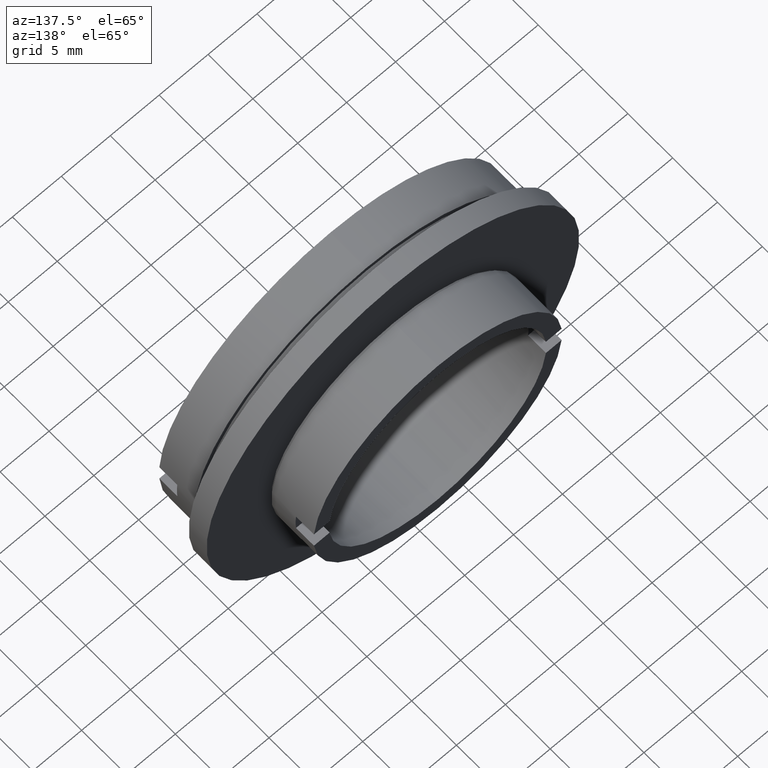
[diagram: clean part render]
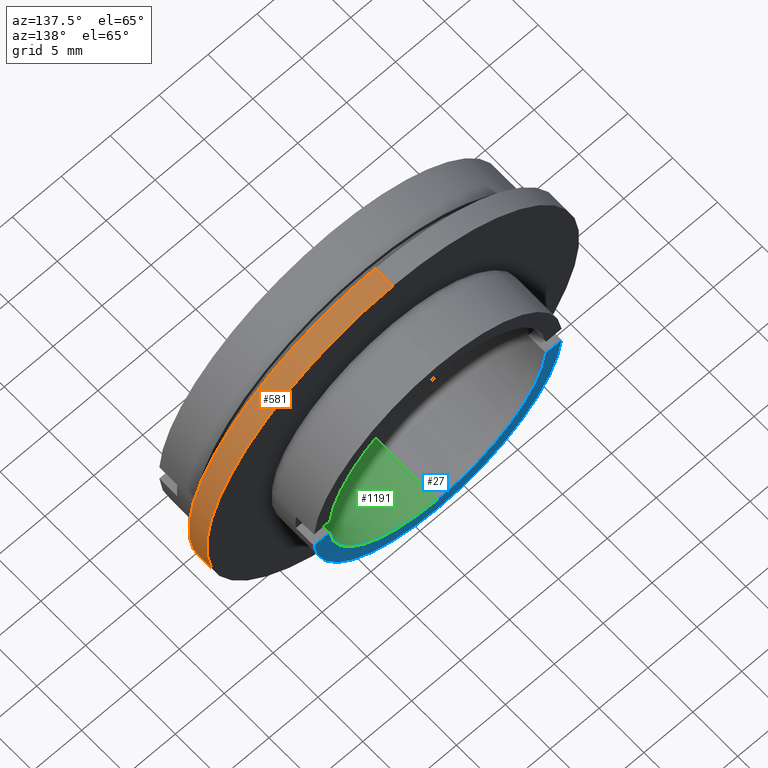
[diagram: same view with three faces highlighted in distinct colors, each labeled with its STEP entity id]
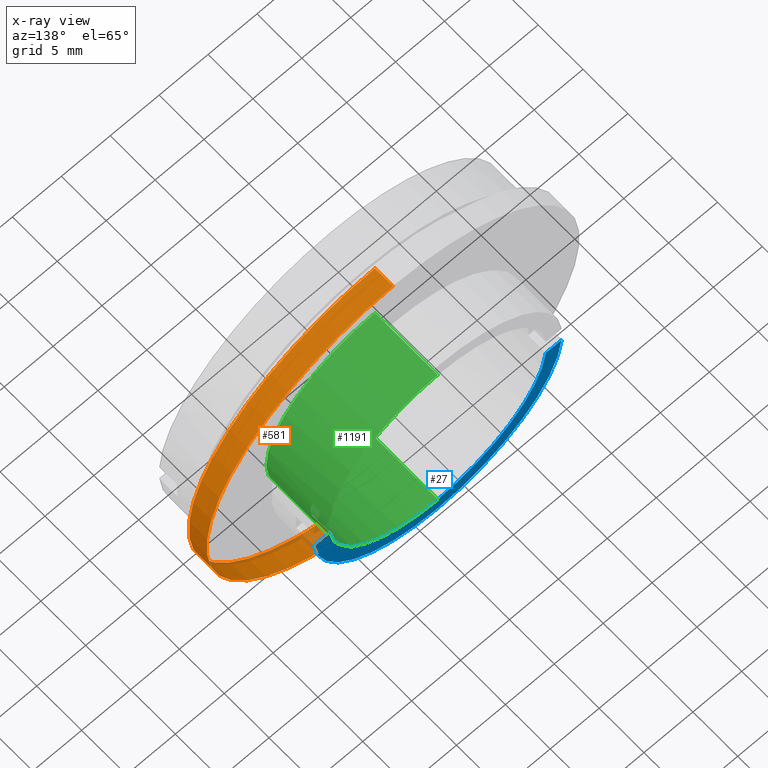
[diagram: x-ray of the same camera — body ghosted, the three highlighted faces saturated]
A machine part, auxiliary view with three faces highlighted in distinct colors.
The next image is the same camera in x-ray (body ghosted, the three faces saturated) — at least one of them is partly hidden behind the body in this view.
Their STEP definitions:

[orange] entity #581 — the highlighted cylindrical surface (partial cylindrical patch) has radius 19.05 mm, axis along (-0, 1, -0).
#51 = CARTESIAN_POINT ( 'NONE',  ( 2.332952152375707300E-015, 5.000000000000000900, -19.04999999999999700 ) ) ;
#72 = CARTESIAN_POINT ( 'NONE',  ( 2.332952152375707300E-015, 7.000000000000002700, -19.04999999999999700 ) ) ;
#128 = VECTOR ( 'NONE', #900, 1000.000000000000000 ) ;
#194 = DIRECTION ( 'NONE',  ( 0.0000000000000000000, 0.0000000000000000000, 1.000000000000000000 ) ) ;
#209 = EDGE_CURVE ( 'NONE', #742, #955, #1009, .T. ) ;
#239 = CARTESIAN_POINT ( 'NONE',  ( 0.0000000000000000000, 5.000000000000000900, 19.04999999999999700 ) ) ;
#352 = VERTEX_POINT ( 'NONE', #239 ) ;
#411 = ORIENTED_EDGE ( 'NONE', *, *, #875, .T. ) ;
#413 = CARTESIAN_POINT ( 'NONE',  ( 0.0000000000000000000, 5.000000000000000900, 0.0000000000000000000 ) ) ;
#465 = EDGE_CURVE ( 'NONE', #352, #742, #1044, .T. ) ;
#480 = CARTESIAN_POINT ( 'NONE',  ( 2.332952152375707300E-015, 22.67749945107591400, -19.04999999999999700 ) ) ;
#519 = AXIS2_PLACEMENT_3D ( 'NONE', #1283, #1285, #194 ) ;
#558 = CARTESIAN_POINT ( 'NONE',  ( 0.0000000000000000000, 7.000000000000002700, 0.0000000000000000000 ) ) ;
#581 = ADVANCED_FACE ( 'NONE', ( #738 ), #1065, .T. ) ;
#582 = AXIS2_PLACEMENT_3D ( 'NONE', #413, #1069, #991 ) ;
#584 = DIRECTION ( 'NONE',  ( -0.0000000000000000000, 1.000000000000000000, -0.0000000000000000000 ) ) ;
#603 = CARTESIAN_POINT ( 'NONE',  ( 0.0000000000000000000, 7.000000000000002700, 19.04999999999999700 ) ) ;
#719 = CIRCLE ( 'NONE', #582, 19.04999999999999700 ) ;
#738 = FACE_OUTER_BOUND ( 'NONE', #821, .T. ) ;
#742 = VERTEX_POINT ( 'NONE', #603 ) ;
#764 = ORIENTED_EDGE ( 'NONE', *, *, #807, .T. ) ;
#778 = DIRECTION ( 'NONE',  ( -0.0000000000000000000, 1.000000000000000000, -0.0000000000000000000 ) ) ;
#807 = EDGE_CURVE ( 'NONE', #352, #1049, #719, .T. ) ;
#821 = EDGE_LOOP ( 'NONE', ( #764, #411, #899, #987 ) ) ;
#875 = EDGE_CURVE ( 'NONE', #1049, #955, #1216, .T. ) ;
#899 = ORIENTED_EDGE ( 'NONE', *, *, #209, .F. ) ;
#900 = DIRECTION ( 'NONE',  ( -0.0000000000000000000, 1.000000000000000000, -0.0000000000000000000 ) ) ;
#955 = VERTEX_POINT ( 'NONE', #72 ) ;
#961 = CARTESIAN_POINT ( 'NONE',  ( 0.0000000000000000000, 22.67749945107591400, 19.04999999999999700 ) ) ;
#980 = DIRECTION ( 'NONE',  ( 0.0000000000000000000, 0.0000000000000000000, 1.000000000000000000 ) ) ;
#987 = ORIENTED_EDGE ( 'NONE', *, *, #465, .F. ) ;
#991 = DIRECTION ( 'NONE',  ( 0.0000000000000000000, 0.0000000000000000000, 1.000000000000000000 ) ) ;
#1009 = CIRCLE ( 'NONE', #1264, 19.04999999999999700 ) ;
#1030 = VECTOR ( 'NONE', #778, 1000.000000000000000 ) ;
#1044 = LINE ( 'NONE', #961, #1030 ) ;
#1049 = VERTEX_POINT ( 'NONE', #51 ) ;
#1065 = CYLINDRICAL_SURFACE ( 'NONE', #519, 19.04999999999999700 ) ;
#1069 = DIRECTION ( 'NONE',  ( -0.0000000000000000000, 1.000000000000000000, -0.0000000000000000000 ) ) ;
#1216 = LINE ( 'NONE', #480, #128 ) ;
#1264 = AXIS2_PLACEMENT_3D ( 'NONE', #558, #584, #980 ) ;
#1283 = CARTESIAN_POINT ( 'NONE',  ( 0.0000000000000000000, 22.67749945107591400, 0.0000000000000000000 ) ) ;
#1285 = DIRECTION ( 'NONE',  ( -0.0000000000000000000, 1.000000000000000000, -0.0000000000000000000 ) ) ;

[blue] entity #27 — the highlighted planar face has unit normal (-0, 1, 0).
#27 = ADVANCED_FACE ( 'NONE', ( #83 ), #1249, .T. ) ;
#32 = CARTESIAN_POINT ( 'NONE',  ( 12.66056870760551300, 12.00000000000000000, -0.9999999999999978900 ) ) ;
#83 = FACE_OUTER_BOUND ( 'NONE', #236, .T. ) ;
#114 = VERTEX_POINT ( 'NONE', #360 ) ;
#134 = LINE ( 'NONE', #588, #424 ) ;
#177 = EDGE_CURVE ( 'NONE', #320, #1220, #1077, .T. ) ;
#199 = ORIENTED_EDGE ( 'NONE', *, *, #836, .F. ) ;
#236 = EDGE_LOOP ( 'NONE', ( #199, #1326, #760, #1052, #858, #883 ) ) ;
#266 = VERTEX_POINT ( 'NONE', #32 ) ;
#319 = AXIS2_PLACEMENT_3D ( 'NONE', #728, #842, #751 ) ;
#320 = VERTEX_POINT ( 'NONE', #651 ) ;
#328 = CARTESIAN_POINT ( 'NONE',  ( 0.0000000000000000000, 12.00000000000000000, 0.0000000000000000000 ) ) ;
#331 = VECTOR ( 'NONE', #750, 1000.000000000000000 ) ;
#348 = DIRECTION ( 'NONE',  ( 0.0000000000000000000, 0.0000000000000000000, 1.000000000000000000 ) ) ;
#360 = CARTESIAN_POINT ( 'NONE',  ( 1.359357947053562000E-015, 12.00000000000000000, -11.09999999999999800 ) ) ;
#410 = CARTESIAN_POINT ( 'NONE',  ( 11.05486318323297800, 12.00000000000000000, -0.9999999999999978900 ) ) ;
#424 = VECTOR ( 'NONE', #551, 1000.000000000000000 ) ;
#458 = EDGE_CURVE ( 'NONE', #114, #812, #1012, .T. ) ;
#551 = DIRECTION ( 'NONE',  ( -1.000000000000000000, 0.0000000000000000000, 0.0000000000000000000 ) ) ;
#562 = CARTESIAN_POINT ( 'NONE',  ( -11.05486318323297800, 12.00000000000000000, -0.9999999999999978900 ) ) ;
#565 = DIRECTION ( 'NONE',  ( -0.0000000000000000000, 1.000000000000000000, 0.0000000000000000000 ) ) ;
#588 = CARTESIAN_POINT ( 'NONE',  ( -11.09999999999999800, 12.00000000000000000, -0.9999999999999978900 ) ) ;
#651 = CARTESIAN_POINT ( 'NONE',  ( 1.555301434917138200E-015, 12.00000000000000000, -12.69999999999999800 ) ) ;
#671 = VERTEX_POINT ( 'NONE', #410 ) ;
#679 = DIRECTION ( 'NONE',  ( 0.0000000000000000000, 0.0000000000000000000, 1.000000000000000000 ) ) ;
#681 = AXIS2_PLACEMENT_3D ( 'NONE', #1266, #565, #1148 ) ;
#717 = EDGE_CURVE ( 'NONE', #266, #320, #920, .T. ) ;
#728 = CARTESIAN_POINT ( 'NONE',  ( 0.0000000000000000000, 12.00000000000000000, 0.0000000000000000000 ) ) ;
#750 = DIRECTION ( 'NONE',  ( -1.000000000000000000, 0.0000000000000000000, 0.0000000000000000000 ) ) ;
#751 = DIRECTION ( 'NONE',  ( 0.0000000000000000000, 0.0000000000000000000, 1.000000000000000000 ) ) ;
#760 = ORIENTED_EDGE ( 'NONE', *, *, #177, .T. ) ;
#812 = VERTEX_POINT ( 'NONE', #562 ) ;
#836 = EDGE_CURVE ( 'NONE', #266, #671, #134, .T. ) ;
#842 = DIRECTION ( 'NONE',  ( -0.0000000000000000000, 1.000000000000000000, -0.0000000000000000000 ) ) ;
#858 = ORIENTED_EDGE ( 'NONE', *, *, #458, .F. ) ;
#861 = CARTESIAN_POINT ( 'NONE',  ( -12.66056870760551300, 12.00000000000000000, -0.9999999999999978900 ) ) ;
#883 = ORIENTED_EDGE ( 'NONE', *, *, #902, .F. ) ;
#902 = EDGE_CURVE ( 'NONE', #671, #114, #1151, .T. ) ;
#920 = CIRCLE ( 'NONE', #1028, 12.69999999999999800 ) ;
#928 = EDGE_CURVE ( 'NONE', #812, #1220, #1100, .T. ) ;
#1003 = AXIS2_PLACEMENT_3D ( 'NONE', #1143, #1050, #348 ) ;
#1012 = CIRCLE ( 'NONE', #319, 11.09999999999999800 ) ;
#1028 = AXIS2_PLACEMENT_3D ( 'NONE', #1206, #1119, #1163 ) ;
#1050 = DIRECTION ( 'NONE',  ( -0.0000000000000000000, 1.000000000000000000, -0.0000000000000000000 ) ) ;
#1052 = ORIENTED_EDGE ( 'NONE', *, *, #928, .F. ) ;
#1072 = DIRECTION ( 'NONE',  ( -0.0000000000000000000, 1.000000000000000000, -0.0000000000000000000 ) ) ;
#1077 = CIRCLE ( 'NONE', #1003, 12.69999999999999800 ) ;
#1100 = LINE ( 'NONE', #1227, #331 ) ;
#1119 = DIRECTION ( 'NONE',  ( -0.0000000000000000000, 1.000000000000000000, -0.0000000000000000000 ) ) ;
#1143 = CARTESIAN_POINT ( 'NONE',  ( 0.0000000000000000000, 12.00000000000000000, 0.0000000000000000000 ) ) ;
#1148 = DIRECTION ( 'NONE',  ( 0.0000000000000000000, 0.0000000000000000000, 1.000000000000000000 ) ) ;
#1151 = CIRCLE ( 'NONE', #1282, 11.09999999999999800 ) ;
#1163 = DIRECTION ( 'NONE',  ( 0.0000000000000000000, 0.0000000000000000000, 1.000000000000000000 ) ) ;
#1206 = CARTESIAN_POINT ( 'NONE',  ( 0.0000000000000000000, 12.00000000000000000, 0.0000000000000000000 ) ) ;
#1220 = VERTEX_POINT ( 'NONE', #861 ) ;
#1227 = CARTESIAN_POINT ( 'NONE',  ( -11.09999999999999800, 12.00000000000000000, -0.9999999999999978900 ) ) ;
#1249 = PLANE ( 'NONE',  #681 ) ;
#1266 = CARTESIAN_POINT ( 'NONE',  ( -11.09999999999999800, 12.00000000000000000, 0.0000000000000000000 ) ) ;
#1282 = AXIS2_PLACEMENT_3D ( 'NONE', #328, #1072, #679 ) ;
#1326 = ORIENTED_EDGE ( 'NONE', *, *, #717, .T. ) ;

[green] entity #1191 — the highlighted cylindrical surface (partial cylindrical patch) has radius 11.1 mm, axis along (-0, 1, -0).
#17 = CARTESIAN_POINT ( 'NONE',  ( 0.0000000000000000000, 22.67749945107591400, 0.0000000000000000000 ) ) ;
#49 = LINE ( 'NONE', #1187, #654 ) ;
#55 = VECTOR ( 'NONE', #279, 1000.000000000000000 ) ;
#59 = ORIENTED_EDGE ( 'NONE', *, *, #902, .T. ) ;
#90 = CYLINDRICAL_SURFACE ( 'NONE', #1281, 11.09999999999999800 ) ;
#109 = ORIENTED_EDGE ( 'NONE', *, *, #958, .F. ) ;
#114 = VERTEX_POINT ( 'NONE', #360 ) ;
#172 = ORIENTED_EDGE ( 'NONE', *, *, #962, .F. ) ;
#214 = VERTEX_POINT ( 'NONE', #341 ) ;
#216 = DIRECTION ( 'NONE',  ( 0.0000000000000000000, 0.0000000000000000000, -1.000000000000000000 ) ) ;
#259 = FACE_OUTER_BOUND ( 'NONE', #1321, .T. ) ;
#279 = DIRECTION ( 'NONE',  ( -0.0000000000000000000, 1.000000000000000000, -0.0000000000000000000 ) ) ;
#300 = AXIS2_PLACEMENT_3D ( 'NONE', #332, #632, #692 ) ;
#328 = CARTESIAN_POINT ( 'NONE',  ( 0.0000000000000000000, 12.00000000000000000, 0.0000000000000000000 ) ) ;
#332 = CARTESIAN_POINT ( 'NONE',  ( 0.0000000000000000000, 12.00000000000000000, 0.0000000000000000000 ) ) ;
#335 = ORIENTED_EDGE ( 'NONE', *, *, #660, .T. ) ;
#337 = ORIENTED_EDGE ( 'NONE', *, *, #1327, .F. ) ;
#341 = CARTESIAN_POINT ( 'NONE',  ( 11.05486318323297800, 10.00000000000000000, -0.9999999999999974500 ) ) ;
#360 = CARTESIAN_POINT ( 'NONE',  ( 1.359357947053562000E-015, 12.00000000000000000, -11.09999999999999800 ) ) ;
#394 = DIRECTION ( 'NONE',  ( -0.0000000000000000000, 1.000000000000000000, -0.0000000000000000000 ) ) ;
#410 = CARTESIAN_POINT ( 'NONE',  ( 11.05486318323297800, 12.00000000000000000, -0.9999999999999978900 ) ) ;
#423 = DIRECTION ( 'NONE',  ( -0.0000000000000000000, 1.000000000000000000, -0.0000000000000000000 ) ) ;
#426 = LINE ( 'NONE', #850, #947 ) ;
#464 = ORIENTED_EDGE ( 'NONE', *, *, #695, .F. ) ;
#479 = EDGE_CURVE ( 'NONE', #977, #114, #49, .T. ) ;
#485 = DIRECTION ( 'NONE',  ( 0.0000000000000000000, -1.000000000000000000, 0.0000000000000000000 ) ) ;
#508 = DIRECTION ( 'NONE',  ( 0.0000000000000000000, 0.0000000000000000000, 1.000000000000000000 ) ) ;
#511 = CARTESIAN_POINT ( 'NONE',  ( 1.359357947053562000E-015, 5.000000000000000900, -11.09999999999999800 ) ) ;
#628 = CARTESIAN_POINT ( 'NONE',  ( 0.0000000000000000000, 5.000000000000000900, 11.09999999999999800 ) ) ;
#632 = DIRECTION ( 'NONE',  ( -0.0000000000000000000, 1.000000000000000000, -0.0000000000000000000 ) ) ;
#654 = VECTOR ( 'NONE', #1171, 1000.000000000000000 ) ;
#660 = EDGE_CURVE ( 'NONE', #1232, #1210, #835, .T. ) ;
#665 = ORIENTED_EDGE ( 'NONE', *, *, #1096, .T. ) ;
#668 = LINE ( 'NONE', #1268, #55 ) ;
#671 = VERTEX_POINT ( 'NONE', #410 ) ;
#679 = DIRECTION ( 'NONE',  ( 0.0000000000000000000, 0.0000000000000000000, 1.000000000000000000 ) ) ;
#682 = DIRECTION ( 'NONE',  ( 0.0000000000000000000, 0.0000000000000000000, 1.000000000000000000 ) ) ;
#692 = DIRECTION ( 'NONE',  ( 0.0000000000000000000, 0.0000000000000000000, 1.000000000000000000 ) ) ;
#695 = EDGE_CURVE ( 'NONE', #988, #977, #896, .T. ) ;
#697 = CARTESIAN_POINT ( 'NONE',  ( 11.05486318323297800, 10.00000000000000000, 1.000000000000001300 ) ) ;
#835 = CIRCLE ( 'NONE', #300, 11.09999999999999800 ) ;
#850 = CARTESIAN_POINT ( 'NONE',  ( 11.05486318323297800, 22.67749945107591400, 1.000000000000002900 ) ) ;
#896 = CIRCLE ( 'NONE', #1133, 11.09999999999999800 ) ;
#898 = VERTEX_POINT ( 'NONE', #697 ) ;
#902 = EDGE_CURVE ( 'NONE', #671, #114, #1151, .T. ) ;
#916 = CARTESIAN_POINT ( 'NONE',  ( 0.0000000000000000000, 12.00000000000000000, 11.09999999999999800 ) ) ;
#947 = VECTOR ( 'NONE', #423, 1000.000000000000000 ) ;
#958 = EDGE_CURVE ( 'NONE', #214, #898, #1032, .T. ) ;
#962 = EDGE_CURVE ( 'NONE', #898, #1210, #426, .T. ) ;
#977 = VERTEX_POINT ( 'NONE', #511 ) ;
#988 = VERTEX_POINT ( 'NONE', #628 ) ;
#1032 = CIRCLE ( 'NONE', #1305, 11.09999999999999800 ) ;
#1033 = DIRECTION ( 'NONE',  ( -0.0000000000000000000, -1.000000000000000000, -0.0000000000000000000 ) ) ;
#1051 = CARTESIAN_POINT ( 'NONE',  ( 11.05486318323297600, 22.67749945107591400, -1.000000000000000000 ) ) ;
#1072 = DIRECTION ( 'NONE',  ( -0.0000000000000000000, 1.000000000000000000, -0.0000000000000000000 ) ) ;
#1096 = EDGE_CURVE ( 'NONE', #988, #1232, #668, .T. ) ;
#1102 = LINE ( 'NONE', #1051, #1107 ) ;
#1107 = VECTOR ( 'NONE', #485, 1000.000000000000000 ) ;
#1133 = AXIS2_PLACEMENT_3D ( 'NONE', #1253, #1162, #508 ) ;
#1151 = CIRCLE ( 'NONE', #1282, 11.09999999999999800 ) ;
#1159 = CARTESIAN_POINT ( 'NONE',  ( 11.05486318323297800, 12.00000000000000000, 1.000000000000001600 ) ) ;
#1162 = DIRECTION ( 'NONE',  ( -0.0000000000000000000, 1.000000000000000000, -0.0000000000000000000 ) ) ;
#1171 = DIRECTION ( 'NONE',  ( -0.0000000000000000000, 1.000000000000000000, -0.0000000000000000000 ) ) ;
#1187 = CARTESIAN_POINT ( 'NONE',  ( 1.359357947053562000E-015, 22.67749945107591400, -11.09999999999999800 ) ) ;
#1191 = ADVANCED_FACE ( 'NONE', ( #259 ), #90, .F. ) ;
#1210 = VERTEX_POINT ( 'NONE', #1159 ) ;
#1232 = VERTEX_POINT ( 'NONE', #916 ) ;
#1253 = CARTESIAN_POINT ( 'NONE',  ( 0.0000000000000000000, 5.000000000000000900, 0.0000000000000000000 ) ) ;
#1268 = CARTESIAN_POINT ( 'NONE',  ( 0.0000000000000000000, 22.67749945107591400, 11.09999999999999800 ) ) ;
#1281 = AXIS2_PLACEMENT_3D ( 'NONE', #17, #394, #682 ) ;
#1282 = AXIS2_PLACEMENT_3D ( 'NONE', #328, #1072, #679 ) ;
#1289 = CARTESIAN_POINT ( 'NONE',  ( 0.0000000000000000000, 10.00000000000000000, 0.0000000000000000000 ) ) ;
#1304 = ORIENTED_EDGE ( 'NONE', *, *, #479, .F. ) ;
#1305 = AXIS2_PLACEMENT_3D ( 'NONE', #1289, #1033, #216 ) ;
#1321 = EDGE_LOOP ( 'NONE', ( #1304, #464, #665, #335, #172, #109, #337, #59 ) ) ;
#1327 = EDGE_CURVE ( 'NONE', #671, #214, #1102, .T. ) ;